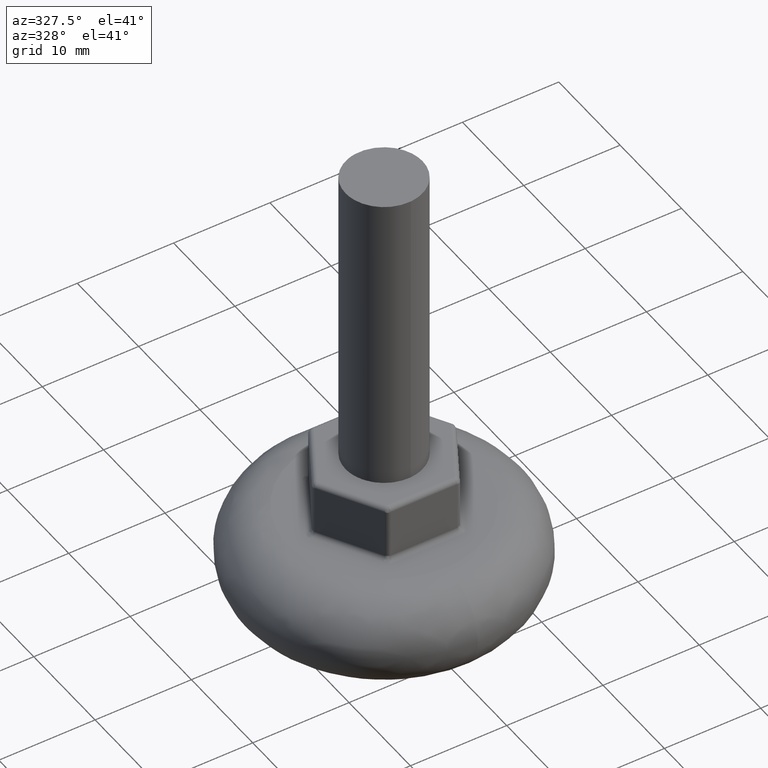
[diagram: clean part render]
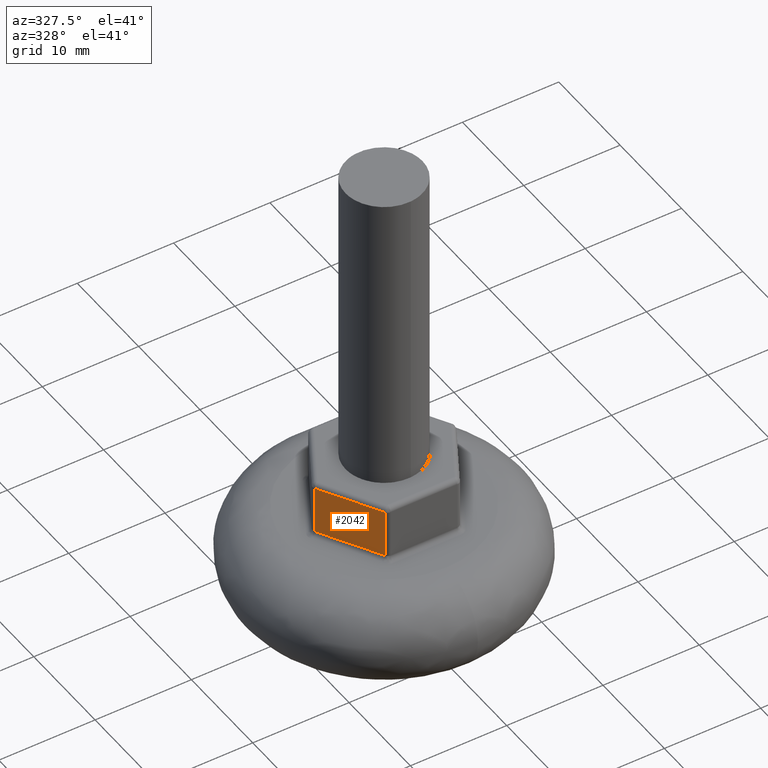
[diagram: same view with one face highlighted and labeled with its STEP entity id]
A machine part, auxiliary view. The second image highlights one B-rep face of the part: STEP entity #2042.
In plain terms, the highlighted face is a freeform B-spline surface patch.
Its self-contained STEP definition (entity closure, byte-faithful):
#776=CARTESIAN_POINT('',(-7.355663000000000,-0.250000000000000,10.500000000000000));
#777=VERTEX_POINT('',#776);
#882=CARTESIAN_POINT('',(-3.891560987973065,-6.250000020831281,10.500000000000000));
#883=VERTEX_POINT('',#882);
#897=CARTESIAN_POINT('',(-7.355663000000000,-0.250000000000000,10.500000000000000));
#898=CARTESIAN_POINT('',(-3.891560987973065,-6.250000020831281,10.500000000000000));
#899=QUASI_UNIFORM_CURVE('',1,(#897,#898),.UNSPECIFIED.,.F.,.U.);
#900=EDGE_CURVE('',#777,#883,#899,.T.);
#1561=CARTESIAN_POINT('',(-3.891560987973065,-6.250000020831281,15.500000000000000));
#1562=VERTEX_POINT('',#1561);
#1654=CARTESIAN_POINT('',(-7.355663000000000,-0.250000000000000,15.500000000000000));
#1655=VERTEX_POINT('',#1654);
#1669=CARTESIAN_POINT('',(-3.891560987973065,-6.250000020831281,15.500000000000000));
#1670=CARTESIAN_POINT('',(-7.355663000000000,-0.250000000000000,15.500000000000000));
#1671=QUASI_UNIFORM_CURVE('',1,(#1669,#1670),.UNSPECIFIED.,.F.,.U.);
#1672=EDGE_CURVE('',#1562,#1655,#1671,.T.);
#2018=CARTESIAN_POINT('',(-7.355663000000000,-0.250000000000000,15.500000000000000));
#2019=CARTESIAN_POINT('',(-7.355663000000000,-0.250000000000000,10.500000000000000));
#2020=QUASI_UNIFORM_CURVE('',1,(#2018,#2019),.UNSPECIFIED.,.F.,.U.);
#2021=EDGE_CURVE('',#1655,#777,#2020,.T.);
#2027=CARTESIAN_POINT('',(-7.528694856268135,0.049699933087649,10.250250009690969));
#2028=CARTESIAN_POINT('',(-3.718529007818982,-6.549700168495649,10.250250009690969));
#2029=CARTESIAN_POINT('',(-7.528694856268135,0.049699933087649,15.749750124419480));
#2030=CARTESIAN_POINT('',(-3.718529007818982,-6.549700168495649,15.749750124419480));
#2031=B_SPLINE_SURFACE_WITH_KNOTS('',1,1,((#2027,#2029),(#2028,#2030)),.UNSPECIFIED.,.F.,.F.,.U.,(2,2),(2,2),(0.0,7.620331061933327),(0.0,5.499500114728511),.UNSPECIFIED.);
#2032=ORIENTED_EDGE('',*,*,#2021,.T.);
#2033=ORIENTED_EDGE('',*,*,#900,.T.);
#2034=CARTESIAN_POINT('',(-3.891560987973065,-6.250000020831281,15.500000000000000));
#2035=CARTESIAN_POINT('',(-3.891560987973065,-6.250000020831281,10.500000000000000));
#2036=QUASI_UNIFORM_CURVE('',1,(#2034,#2035),.UNSPECIFIED.,.F.,.U.);
#2037=EDGE_CURVE('',#1562,#883,#2036,.T.);
#2038=ORIENTED_EDGE('',*,*,#2037,.F.);
#2039=ORIENTED_EDGE('',*,*,#1672,.T.);
#2040=EDGE_LOOP('',(#2032,#2033,#2038,#2039));
#2041=FACE_OUTER_BOUND('',#2040,.T.);
#2042=ADVANCED_FACE('',(#2041),#2031,.T.);